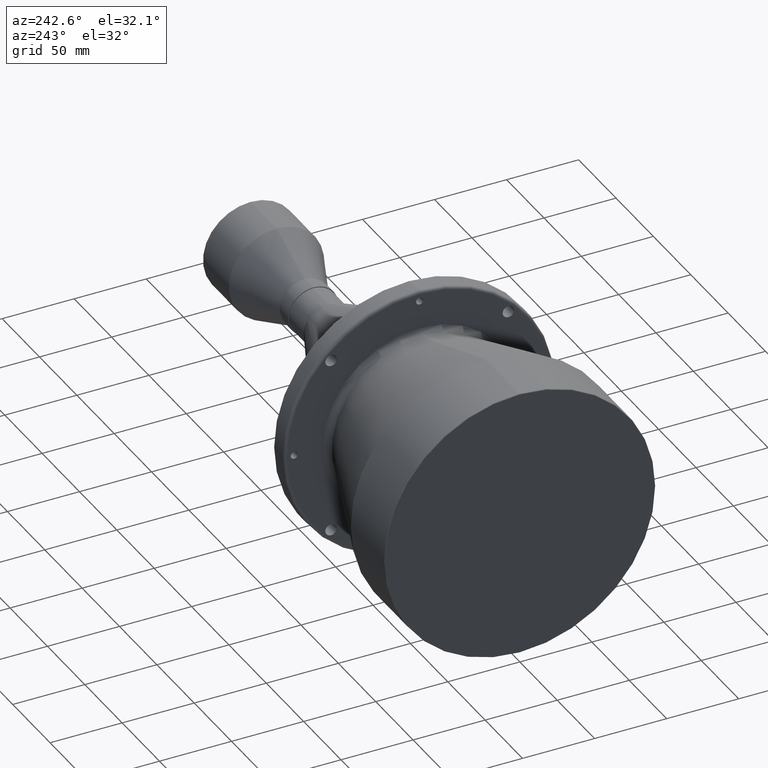
[diagram: clean part render]
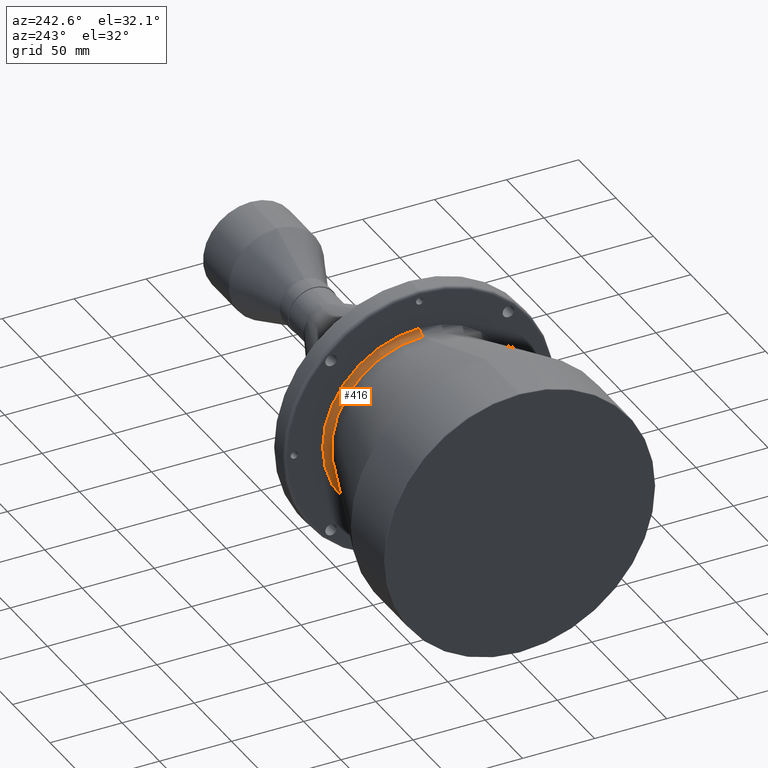
[diagram: same view with one face highlighted and labeled with its STEP entity id]
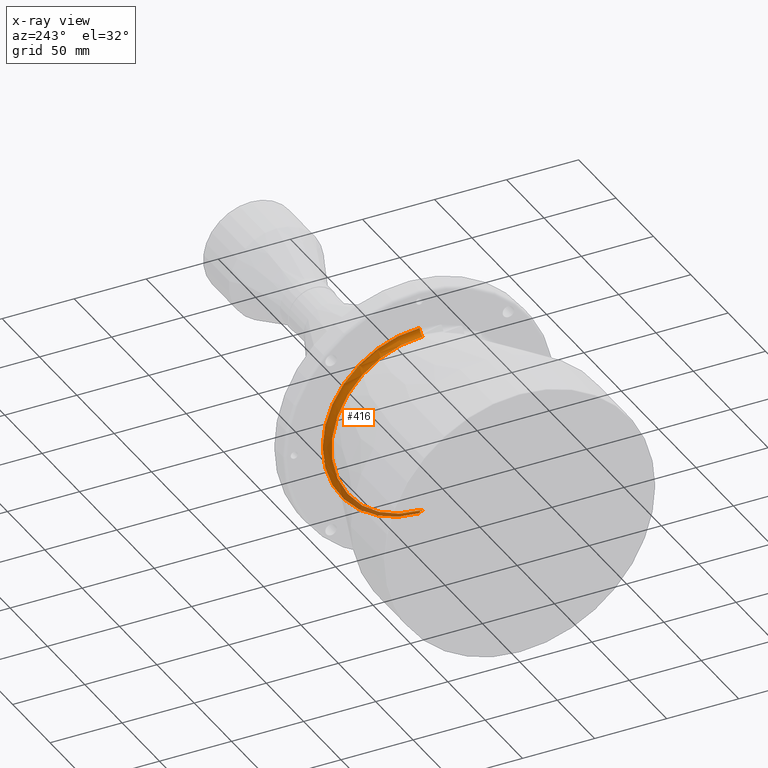
[diagram: x-ray of the same camera — body ghosted, the highlighted face saturated]
A machine part, auxiliary view. The second image highlights one B-rep face of the part: STEP entity #416.
The next image is the same camera in x-ray: the body ghosted, the highlighted face saturated — about 18% of this face is hidden behind the body in this view.
In plain terms, the highlighted toroidal blend (fillet) surface has major radius 67.3192 mm and minor (blend) radius 4 mm.
Its self-contained STEP definition (entity closure, byte-faithful):
#7 = EDGE_CURVE ( 'NONE', #1115, #1585, #721, .T. ) ;
#16 = DIRECTION ( 'NONE',  ( -1.000000000000000000, -0.0000000000000000000, -0.0000000000000000000 ) ) ;
#31 = ORIENTED_EDGE ( 'NONE', *, *, #1779, .T. ) ;
#33 = CARTESIAN_POINT ( 'NONE',  ( 130.0000000000000000, 7.754370603219080000E-015, -63.31924117727638900 ) ) ;
#61 = CARTESIAN_POINT ( 'NONE',  ( 130.0000000000000000, 0.0000000000000000000, 0.0000000000000000000 ) ) ;
#97 = CARTESIAN_POINT ( 'NONE',  ( 130.0000000000000000, 8.244229322878022100E-015, -67.31924117727639600 ) ) ;
#117 = CARTESIAN_POINT ( 'NONE',  ( 130.0000000000000000, 0.0000000000000000000, 67.31924117727639600 ) ) ;
#123 = DIRECTION ( 'NONE',  ( 0.0000000000000000000, -1.000000000000000000, 0.0000000000000000000 ) ) ;
#140 = CIRCLE ( 'NONE', #1789, 4.000000000000003600 ) ;
#148 = DIRECTION ( 'NONE',  ( 0.0000000000000000000, 0.0000000000000000000, 1.000000000000000000 ) ) ;
#164 = AXIS2_PLACEMENT_3D ( 'NONE', #97, #1834, #985 ) ;
#331 = AXIS2_PLACEMENT_3D ( 'NONE', #1242, #1802, #1096 ) ;
#416 = ADVANCED_FACE ( 'NONE', ( #1490 ), #1060, .F. ) ;
#418 = DIRECTION ( 'NONE',  ( 0.0000000000000000000, 0.0000000000000000000, -1.000000000000000000 ) ) ;
#443 = AXIS2_PLACEMENT_3D ( 'NONE', #1183, #16, #148 ) ;
#573 = CARTESIAN_POINT ( 'NONE',  ( 134.0000000000000000, 0.0000000000000000000, 67.31924117727639600 ) ) ;
#647 = VERTEX_POINT ( 'NONE', #573 ) ;
#721 = CIRCLE ( 'NONE', #443, 63.31924117727638900 ) ;
#726 = CARTESIAN_POINT ( 'NONE',  ( 134.0000000000000000, 8.244229322878020500E-015, -67.31924117727639600 ) ) ;
#903 = EDGE_CURVE ( 'NONE', #647, #1478, #1287, .T. ) ;
#971 = EDGE_CURVE ( 'NONE', #1585, #1478, #1467, .T. ) ;
#985 = DIRECTION ( 'NONE',  ( 0.0000000000000000000, -1.224646799147353500E-016, 1.000000000000000000 ) ) ;
#1060 = TOROIDAL_SURFACE ( 'NONE', #1567, 67.31924117727639600, 3.999999999999998200 ) ;
#1068 = ORIENTED_EDGE ( 'NONE', *, *, #903, .T. ) ;
#1096 = DIRECTION ( 'NONE',  ( 0.0000000000000000000, 0.0000000000000000000, 1.000000000000000000 ) ) ;
#1115 = VERTEX_POINT ( 'NONE', #1169 ) ;
#1169 = CARTESIAN_POINT ( 'NONE',  ( 130.0000000000000000, 0.0000000000000000000, 63.31924117727638900 ) ) ;
#1183 = CARTESIAN_POINT ( 'NONE',  ( 130.0000000000000000, 0.0000000000000000000, 0.0000000000000000000 ) ) ;
#1196 = EDGE_LOOP ( 'NONE', ( #1472, #31, #1068, #1798 ) ) ;
#1242 = CARTESIAN_POINT ( 'NONE',  ( 134.0000000000000000, 0.0000000000000000000, 0.0000000000000000000 ) ) ;
#1287 = CIRCLE ( 'NONE', #331, 67.31924117727639600 ) ;
#1369 = DIRECTION ( 'NONE',  ( 0.0000000000000000000, 0.0000000000000000000, 1.000000000000000000 ) ) ;
#1467 = CIRCLE ( 'NONE', #164, 4.000000000000003600 ) ;
#1472 = ORIENTED_EDGE ( 'NONE', *, *, #7, .F. ) ;
#1478 = VERTEX_POINT ( 'NONE', #726 ) ;
#1490 = FACE_OUTER_BOUND ( 'NONE', #1196, .T. ) ;
#1567 = AXIS2_PLACEMENT_3D ( 'NONE', #61, #1670, #1369 ) ;
#1585 = VERTEX_POINT ( 'NONE', #33 ) ;
#1670 = DIRECTION ( 'NONE',  ( -1.000000000000000000, -0.0000000000000000000, -0.0000000000000000000 ) ) ;
#1779 = EDGE_CURVE ( 'NONE', #1115, #647, #140, .T. ) ;
#1789 = AXIS2_PLACEMENT_3D ( 'NONE', #117, #123, #418 ) ;
#1798 = ORIENTED_EDGE ( 'NONE', *, *, #971, .F. ) ;
#1802 = DIRECTION ( 'NONE',  ( -1.000000000000000000, -0.0000000000000000000, -0.0000000000000000000 ) ) ;
#1834 = DIRECTION ( 'NONE',  ( -0.0000000000000000000, 1.000000000000000000, 1.224646799147353200E-016 ) ) ;